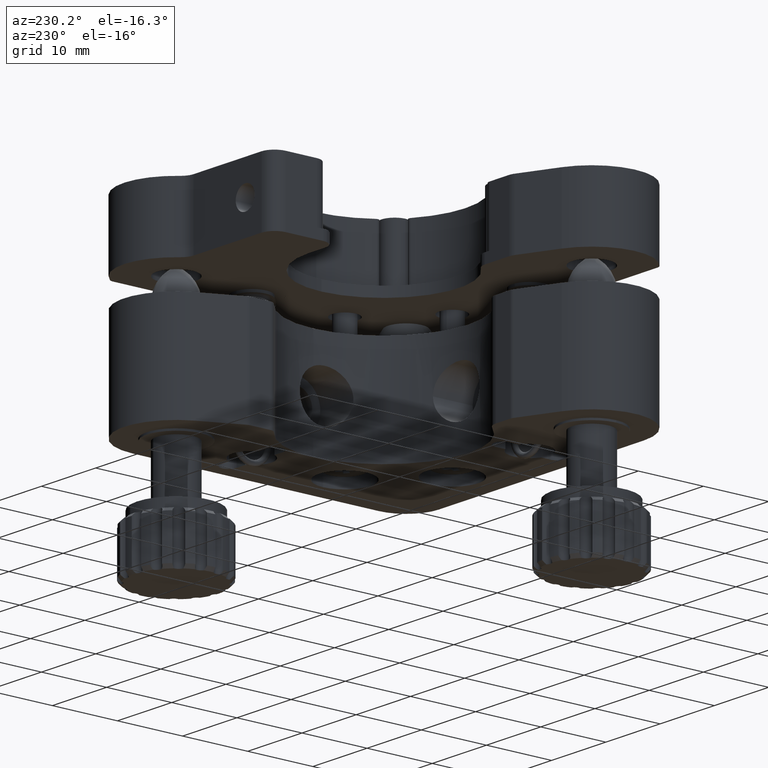
[diagram: clean part render]
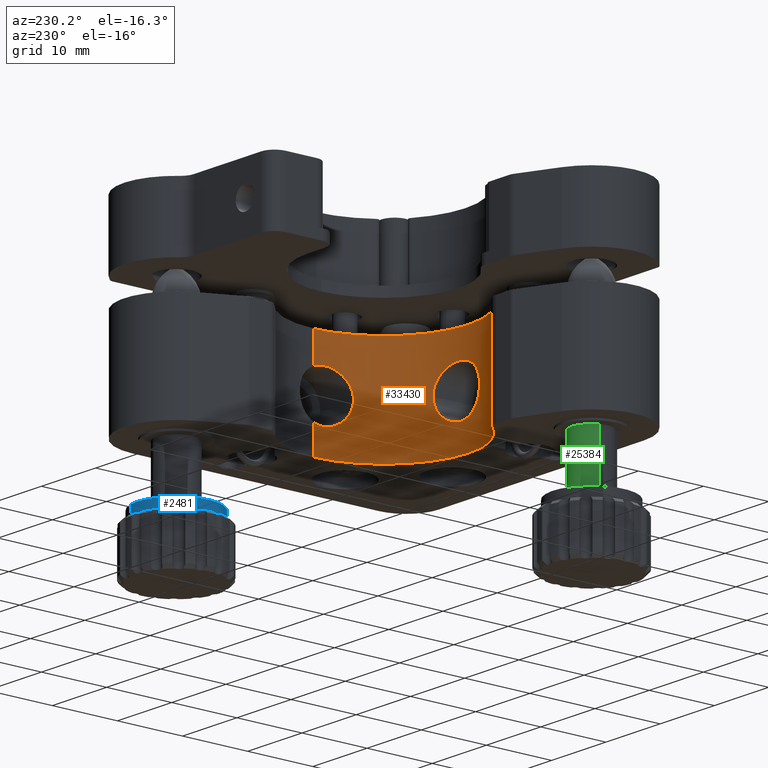
[diagram: same view with three faces highlighted in distinct colors, each labeled with its STEP entity id]
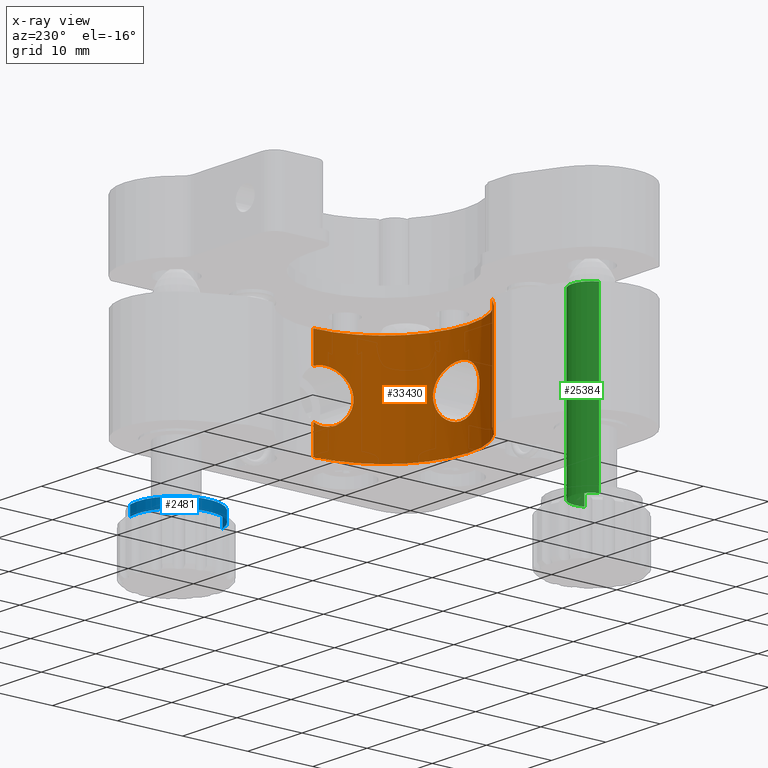
[diagram: x-ray of the same camera — body ghosted, the three highlighted faces saturated]
A machine part, auxiliary view with three faces highlighted in distinct colors.
The next image is the same camera in x-ray (body ghosted, the three faces saturated) — at least one of them is partly hidden behind the body in this view.
Their STEP definitions:

[orange] entity #33430 — the highlighted cylindrical surface (partial cylindrical patch) has radius 13 mm, axis along (0, 0, -1).
#79 = CARTESIAN_POINT ( 'NONE',  ( 29.25068501877161300, 36.55511698702185400, 31.50348170793327500 ) ) ;
#306 = B_SPLINE_CURVE_WITH_KNOTS ( 'NONE', 3,
 ( #14465, #17109, #13741, #13506, #13107, #12323, #11818, #12072, #11737, #11576, #11501, #10963, #10467, #10349, #9334, #4859, #4782, #4739, #4687, #4516, #4481, #79, #4409, #4306, #4268, #4155, #4109, #3990, #3916, #3873, #3664, #3625, #3425, #3306 ),
 .UNSPECIFIED., .F., .F.,
 ( 4, 2, 2, 2, 2, 2, 2, 2, 2, 2, 2, 2, 2, 2, 2, 2, 4 ),
 ( 0.0000000000000000000, 0.0007448707936303037400, 0.001489741587260607500, 0.002234612380890911200, 0.002979483174521215000, 0.003724353968151518700, 0.004469224761781822500, 0.005214095555412126200, 0.005958966349042429900, 0.006703837142672732800, 0.007448707936303037400, 0.008193578729933349800, 0.008938449523563662300, 0.009683320317193976400, 0.01042819111082428900, 0.01117306190445460300, 0.01191793269808491500 ),
 .UNSPECIFIED. ) ;
#1497 = EDGE_CURVE ( 'NONE', #15180, #5653, #1694, .T. ) ;
#1557 = CARTESIAN_POINT ( 'NONE',  ( 15.13875778328551800, 28.58090698974825400, 31.23184706960296000 ) ) ;
#1680 = CARTESIAN_POINT ( 'NONE',  ( 18.98504684360763800, 28.53938262594033000, 33.76043171246860900 ) ) ;
#1694 = LINE ( 'NONE', #12486, #16814 ) ;
#1803 = CARTESIAN_POINT ( 'NONE',  ( 22.32208070088764600, 29.47186954336590100, 30.99339922120351100 ) ) ;
#2270 = CARTESIAN_POINT ( 'NONE',  ( 22.41914494663291500, 29.51400709314875200, 29.51794536846513500 ) ) ;
#2391 = CARTESIAN_POINT ( 'NONE',  ( 19.22783980612315700, 28.57558437823940200, 26.29383889776568900 ) ) ;
#2520 = CARTESIAN_POINT ( 'NONE',  ( 15.32885457699042700, 28.55191263476409300, 28.34048682022018900 ) ) ;
#2742 = VERTEX_POINT ( 'NONE', #35878 ) ;
#3306 = CARTESIAN_POINT ( 'NONE',  ( 30.10710815326551100, 39.91778669584324000, 33.57527957125741800 ) ) ;
#3425 = CARTESIAN_POINT ( 'NONE',  ( 30.07846558588068900, 39.67120910461005700, 33.57527957125743300 ) ) ;
#3618 = EDGE_CURVE ( 'NONE', #6749, #7564, #306, .T. ) ;
#3625 = CARTESIAN_POINT ( 'NONE',  ( 30.04219133656996400, 39.42214796824188700, 33.55054909471144200 ) ) ;
#3664 = CARTESIAN_POINT ( 'NONE',  ( 29.95771943481462100, 38.93865953987926100, 33.45358506874900000 ) ) ;
#3873 = CARTESIAN_POINT ( 'NONE',  ( 29.90998337716128900, 38.70571225342421000, 33.38232041021202400 ) ) ;
#3916 = CARTESIAN_POINT ( 'NONE',  ( 29.80577938156031000, 38.25636058142914200, 33.19593636931610100 ) ) ;
#3990 = CARTESIAN_POINT ( 'NONE',  ( 29.74871696864973800, 38.03821275587535000, 33.07927773626445100 ) ) ;
#4004 = VERTEX_POINT ( 'NONE', #27202 ) ;
#4109 = CARTESIAN_POINT ( 'NONE',  ( 29.63310493153693800, 37.63478242088736200, 32.81010682492031800 ) ) ;
#4129 = CARTESIAN_POINT ( 'NONE',  ( 30.19393658312055400, 41.41778669584324000, 26.38834780004054200 ) ) ;
#4155 = CARTESIAN_POINT ( 'NONE',  ( 29.57422495269233000, 37.44769337270893300, 32.65730449209906500 ) ) ;
#4268 = CARTESIAN_POINT ( 'NONE',  ( 29.45812790892108500, 37.10237336311264800, 32.31429020665929400 ) ) ;
#4306 = CARTESIAN_POINT ( 'NONE',  ( 29.40125423252694100, 36.94535872114731500, 32.12451241986577300 ) ) ;
#4409 = CARTESIAN_POINT ( 'NONE',  ( 29.29798006774942100, 36.67296346367062700, 31.72078001937858700 ) ) ;
#4416 = CARTESIAN_POINT ( 'NONE',  ( 15.44818013563171600, 28.53478629683056400, 31.90798270974103100 ) ) ;
#4481 = CARTESIAN_POINT ( 'NONE',  ( 29.17163046922349400, 36.36352228759592700, 31.04639156384233100 ) ) ;
#4516 = CARTESIAN_POINT ( 'NONE',  ( 29.14042272346566900, 36.29096118293206500, 30.81038823386352000 ) ) ;
#4525 = CARTESIAN_POINT ( 'NONE',  ( 19.70587471704553600, 28.66046852245348800, 33.63281014989804200 ) ) ;
#4664 = CARTESIAN_POINT ( 'NONE',  ( 22.44393658312055400, 29.52503680357694500, 30.26386570700773100 ) ) ;
#4687 = CARTESIAN_POINT ( 'NONE',  ( 29.09775582246828700, 36.19265909374299600, 30.32300110617018500 ) ) ;
#4739 = CARTESIAN_POINT ( 'NONE',  ( 29.08658424467233800, 36.16755511398078900, 30.07021868096471800 ) ) ;
#4782 = CARTESIAN_POINT ( 'NONE',  ( 29.08679016485340400, 36.16802158219643800, 29.57330005316102400 ) ) ;
#4859 = CARTESIAN_POINT ( 'NONE',  ( 29.09777671160236800, 36.19269951207716900, 29.32620690511766200 ) ) ;
#5059 = VECTOR ( 'NONE', #10729, 1000.000000000000000 ) ;
#5112 = DIRECTION ( 'NONE',  ( 0.0000000000000000000, 0.0000000000000000000, -1.000000000000000000 ) ) ;
#5131 = CARTESIAN_POINT ( 'NONE',  ( 22.24946857561525700, 29.44064339343767900, 28.79689250419540900 ) ) ;
#5248 = CARTESIAN_POINT ( 'NONE',  ( 18.49546670359383400, 28.48074732579983200, 26.26090234811147500 ) ) ;
#5382 = CARTESIAN_POINT ( 'NONE',  ( 15.06646065864656400, 28.59295476579672600, 29.03097702548161500 ) ) ;
#5440 = VERTEX_POINT ( 'NONE', #19996 ) ;
#5653 = VERTEX_POINT ( 'NONE', #18531 ) ;
#6021 = AXIS2_PLACEMENT_3D ( 'NONE', #20274, #25952, #23234 ) ;
#6124 = CARTESIAN_POINT ( 'NONE',  ( 30.19393658312055400, 41.41778669584324000, 37.86366457255799400 ) ) ;
#6327 = AXIS2_PLACEMENT_3D ( 'NONE', #29409, #12499, #32239 ) ;
#6749 = VERTEX_POINT ( 'NONE', #31715 ) ;
#6999 = CARTESIAN_POINT ( 'NONE',  ( 30.15885780398059900, 40.43065889974523200, 26.10162375079663700 ) ) ;
#7229 = ORIENTED_EDGE ( 'NONE', *, *, #34038, .F. ) ;
#7274 = CARTESIAN_POINT ( 'NONE',  ( 15.88132651756001800, 28.48301471998607000, 32.50627117479323400 ) ) ;
#7391 = CARTESIAN_POINT ( 'NONE',  ( 20.38473489987771400, 28.81339083490119500, 33.36954129109750500 ) ) ;
#7564 = VERTEX_POINT ( 'NONE', #11999 ) ;
#7618 = VECTOR ( 'NONE', #25800, 1000.000000000000000 ) ;
#7971 = CARTESIAN_POINT ( 'NONE',  ( 21.94654638470079200, 29.31681205396146300, 28.13161239742929400 ) ) ;
#8084 = CARTESIAN_POINT ( 'NONE',  ( 17.76050873577182500, 28.42787038701206400, 26.37333791915745000 ) ) ;
#8208 = CARTESIAN_POINT ( 'NONE',  ( 14.94393658312055700, 28.61397866854137500, 29.76719157323858800 ) ) ;
#8786 = CARTESIAN_POINT ( 'NONE',  ( 30.19393658312055400, 41.41778669584324000, 37.86366457255799400 ) ) ;
#8917 = CARTESIAN_POINT ( 'NONE',  ( 30.15875968505257600, 40.42875442063159100, 33.54936802928524000 ) ) ;
#9334 = CARTESIAN_POINT ( 'NONE',  ( 29.14099122929373900, 36.29227880259383500, 28.83480465045818200 ) ) ;
#9380 = CARTESIAN_POINT ( 'NONE',  ( 17.19393658312055400, 41.41778669584324000, 37.86366457255799400 ) ) ;
#9838 = CARTESIAN_POINT ( 'NONE',  ( 30.10710815326551100, 39.91778669584324000, 26.07527957125741800 ) ) ;
#9990 = CARTESIAN_POINT ( 'NONE',  ( 14.94393658312055500, 28.61397866854136400, 30.26009968302317100 ) ) ;
#10017 = ORIENTED_EDGE ( 'NONE', *, *, #31310, .F. ) ;
#10119 = CARTESIAN_POINT ( 'NONE',  ( 16.42845665998803600, 28.43870838955374200, 33.01212286648650700 ) ) ;
#10240 = CARTESIAN_POINT ( 'NONE',  ( 20.99883699055403200, 28.98530947236744000, 32.98164098286196800 ) ) ;
#10349 = CARTESIAN_POINT ( 'NONE',  ( 29.17259297343704100, 36.36582491339707700, 28.59808784836550500 ) ) ;
#10467 = CARTESIAN_POINT ( 'NONE',  ( 29.25083913892867900, 36.55552101734374300, 28.14670829309350400 ) ) ;
#10580 = CYLINDRICAL_SURFACE ( 'NONE', #6021, 13.00000000000000200 ) ;
#10729 = DIRECTION ( 'NONE',  ( 0.0000000000000000000, 0.0000000000000000000, -1.000000000000000000 ) ) ;
#10830 = CARTESIAN_POINT ( 'NONE',  ( 21.52148744352561500, 29.15792344329552300, 27.53877220513124200 ) ) ;
#10946 = CARTESIAN_POINT ( 'NONE',  ( 17.06220567850337100, 28.41640488595623300, 26.62812551692126900 ) ) ;
#10963 = CARTESIAN_POINT ( 'NONE',  ( 29.29806022198964800, 36.67313362608100400, 27.92927387479918600 ) ) ;
#11501 = CARTESIAN_POINT ( 'NONE',  ( 29.40209644586734000, 36.94762175671044700, 27.52294784484051200 ) ) ;
#11576 = CARTESIAN_POINT ( 'NONE',  ( 29.45805099024486400, 37.10220436787759000, 27.33660309888197300 ) ) ;
#11737 = CARTESIAN_POINT ( 'NONE',  ( 29.57343267239196600, 37.44527746411107200, 26.99548937961657600 ) ) ;
#11778 = CARTESIAN_POINT ( 'NONE',  ( 30.19393658312056100, 41.18201317599793000, 33.36511134262261900 ) ) ;
#11818 = CARTESIAN_POINT ( 'NONE',  ( 29.74914082197961600, 38.03977614996078000, 26.57036757808546700 ) ) ;
#11999 = CARTESIAN_POINT ( 'NONE',  ( 30.10710815326551100, 39.91778669584324000, 33.57527957125741800 ) ) ;
#12072 = CARTESIAN_POINT ( 'NONE',  ( 29.63347071157763300, 37.63597504076185600, 26.83952819773765000 ) ) ;
#12117 = EDGE_LOOP ( 'NONE', ( #24321, #35084, #28975, #33530, #7229, #23215, #29997, #30255 ) ) ;
#12243 = DIRECTION ( 'NONE',  ( 1.000000000000000000, 0.0000000000000000000, 0.0000000000000000000 ) ) ;
#12323 = CARTESIAN_POINT ( 'NONE',  ( 29.80502835347108700, 38.25328961507339900, 26.45605469330979200 ) ) ;
#12486 = CARTESIAN_POINT ( 'NONE',  ( 30.19393658312055400, 41.41778669584324000, 37.86366457255799400 ) ) ;
#12499 = DIRECTION ( 'NONE',  ( 0.0000000000000000000, 0.0000000000000000000, -1.000000000000000000 ) ) ;
#12989 = CARTESIAN_POINT ( 'NONE',  ( 17.05921191793864000, 28.41642045891186200, 33.39783113458134500 ) ) ;
#13107 = CARTESIAN_POINT ( 'NONE',  ( 29.90977836331593300, 38.70466206998445100, 26.26851763767127700 ) ) ;
#13116 = CARTESIAN_POINT ( 'NONE',  ( 21.52184616925901000, 29.15805230763438900, 32.48813122338521000 ) ) ;
#13311 = EDGE_CURVE ( 'NONE', #18023, #2742, #30524, .T. ) ;
#13415 = EDGE_CURVE ( 'NONE', #20991, #26545, #35107, .T. ) ;
#13506 = CARTESIAN_POINT ( 'NONE',  ( 29.95838189457839800, 38.94223940571777100, 26.19612603015919600 ) ) ;
#13692 = CARTESIAN_POINT ( 'NONE',  ( 20.99686830004002000, 28.98471076582353900, 27.04418766207566400 ) ) ;
#13741 = CARTESIAN_POINT ( 'NONE',  ( 30.04220064632967500, 39.42241478642515800, 26.10008768203930200 ) ) ;
#13812 = CARTESIAN_POINT ( 'NONE',  ( 16.42882880251303100, 28.43868262797204200, 27.01490408245804900 ) ) ;
#14465 = CARTESIAN_POINT ( 'NONE',  ( 30.10710815326551100, 39.91778669584324000, 26.07527957125741800 ) ) ;
#15180 = VERTEX_POINT ( 'NONE', #6124 ) ;
#15831 = CARTESIAN_POINT ( 'NONE',  ( 17.75948690046600100, 28.42783294852470600, 33.65370426928550500 ) ) ;
#15960 = CARTESIAN_POINT ( 'NONE',  ( 21.94658354581295300, 29.31683054612713200, 31.89558901496886300 ) ) ;
#16545 = CARTESIAN_POINT ( 'NONE',  ( 20.38412173851343600, 28.81324165275381000, 26.65750484766255100 ) ) ;
#16670 = CARTESIAN_POINT ( 'NONE',  ( 15.88145935310576100, 28.48299674510615300, 27.52086645590743400 ) ) ;
#16814 = VECTOR ( 'NONE', #5112, 1000.000000000000000 ) ;
#17109 = CARTESIAN_POINT ( 'NONE',  ( 30.07802789748630800, 39.66744114105619400, 26.07527957125741800 ) ) ;
#17290 = ORIENTED_EDGE ( 'NONE', *, *, #13311, .F. ) ;
#17347 = EDGE_CURVE ( 'NONE', #5440, #4004, #30192, .T. ) ;
#18023 = VERTEX_POINT ( 'NONE', #26113 ) ;
#18531 = CARTESIAN_POINT ( 'NONE',  ( 30.19393658312055400, 41.41778669584324000, 33.26221134247430200 ) ) ;
#18576 = CARTESIAN_POINT ( 'NONE',  ( 15.06639013194742700, 28.59296624932138900, 30.99621552211098300 ) ) ;
#18712 = CARTESIAN_POINT ( 'NONE',  ( 18.49311019687638300, 28.48049504441037900, 33.76635400109630300 ) ) ;
#18829 = CARTESIAN_POINT ( 'NONE',  ( 22.24862254065952900, 29.44028881886717400, 31.23271856570896100 ) ) ;
#19408 = CARTESIAN_POINT ( 'NONE',  ( 19.70584190909854500, 28.66046509920182600, 26.39452056967084200 ) ) ;
#19534 = CARTESIAN_POINT ( 'NONE',  ( 15.44828942922063900, 28.53477184484398800, 28.11916854024816100 ) ) ;
#19996 = CARTESIAN_POINT ( 'NONE',  ( 30.19393658312055400, 41.41778669584324000, 26.38834780004054200 ) ) ;
#20274 = CARTESIAN_POINT ( 'NONE',  ( 17.19393658312055400, 41.41778669584324000, 37.86366457255799400 ) ) ;
#20976 = CIRCLE ( 'NONE', #31676, 13.00000000000000200 ) ;
#20991 = VERTEX_POINT ( 'NONE', #28873 ) ;
#21150 = CARTESIAN_POINT ( 'NONE',  ( 30.19393658312055000, 41.18316380038627500, 26.28594997354517900 ) ) ;
#21431 = CARTESIAN_POINT ( 'NONE',  ( 15.32881469002518800, 28.55191864071609900, 31.68675140219759400 ) ) ;
#21553 = CARTESIAN_POINT ( 'NONE',  ( 19.22755762129720800, 28.57553667340355100, 33.73354119477100700 ) ) ;
#21671 = CARTESIAN_POINT ( 'NONE',  ( 22.41913578203914200, 29.51400191796430400, 30.50985067617320100 ) ) ;
#21708 = FACE_OUTER_BOUND ( 'NONE', #12117, .T. ) ;
#22133 = CARTESIAN_POINT ( 'NONE',  ( 22.32256760856780200, 29.47207972319131700, 29.03593671571309200 ) ) ;
#22261 = CARTESIAN_POINT ( 'NONE',  ( 18.98579429138442300, 28.53950209462839300, 26.26700823864651100 ) ) ;
#22377 = CARTESIAN_POINT ( 'NONE',  ( 15.13873845076746600, 28.58090986065033700, 28.79552380129543500 ) ) ;
#23083 = CARTESIAN_POINT ( 'NONE',  ( 30.13671067146291800, 40.17262829343749100, 33.57527957125741100 ) ) ;
#23215 = ORIENTED_EDGE ( 'NONE', *, *, #17347, .T. ) ;
#23234 = DIRECTION ( 'NONE',  ( 1.000000000000000000, 0.0000000000000000000, 0.0000000000000000000 ) ) ;
#24006 = CARTESIAN_POINT ( 'NONE',  ( 30.18738847875212600, 40.93424622716997200, 26.20651450732168200 ) ) ;
#24106 = B_SPLINE_CURVE_WITH_KNOTS ( 'NONE', 3,
 ( #27672, #33166, #2270, #22133, #5131, #24990, #7971, #27796, #10830, #30589, #13692, #33398, #16545, #36252, #19408, #2391, #22261, #5248, #25115, #8084, #27924, #10946, #30714, #13812, #33521, #16670, #36376, #19534, #2520, #22377, #5382, #25233, #8208, #28038 ),
 .UNSPECIFIED., .F., .F.,
 ( 4, 2, 2, 2, 2, 2, 2, 2, 2, 2, 2, 2, 2, 2, 2, 2, 4 ),
 ( 0.0000000000000000000, 0.0007394264796464903400, 0.001478852959292980700, 0.002218279438939470800, 0.002957705918585961300, 0.003697132398232451500, 0.004436558877878941600, 0.005175985357525432100, 0.005915411837171922700, 0.006654838316818412400, 0.007394264796464902900, 0.008133691276111392600, 0.008873117755757883200, 0.009612544235404373700, 0.01035197071505086100, 0.01109139719469735000, 0.01183082367434383700 ),
 .UNSPECIFIED. ) ;
#24289 = CARTESIAN_POINT ( 'NONE',  ( 15.72435905922456600, 28.50036796158485700, 32.31691997542754500 ) ) ;
#24321 = ORIENTED_EDGE ( 'NONE', *, *, #29712, .F. ) ;
#24421 = CARTESIAN_POINT ( 'NONE',  ( 19.94076399206190300, 28.70924908905929100, 33.55853818247653900 ) ) ;
#24538 = CARTESIAN_POINT ( 'NONE',  ( 22.44393658312055400, 29.52503680357694200, 30.01366457255799200 ) ) ;
#24990 = CARTESIAN_POINT ( 'NONE',  ( 22.06125980891111000, 29.36293165610196400, 28.34528922238879300 ) ) ;
#25115 = CARTESIAN_POINT ( 'NONE',  ( 18.24507691648412300, 28.45807860830614500, 26.28247298147994500 ) ) ;
#25233 = CARTESIAN_POINT ( 'NONE',  ( 14.96850819357395900, 28.60958868339211500, 29.51824584846934100 ) ) ;
#25800 = DIRECTION ( 'NONE',  ( 0.0000000000000000000, 0.0000000000000000000, -1.000000000000000000 ) ) ;
#25952 = DIRECTION ( 'NONE',  ( 0.0000000000000000000, 0.0000000000000000000, -1.000000000000000000 ) ) ;
#26113 = CARTESIAN_POINT ( 'NONE',  ( 14.94393658312055400, 28.61397866854136400, 30.01366457255799200 ) ) ;
#26545 = VERTEX_POINT ( 'NONE', #34971 ) ;
#26688 = B_SPLINE_CURVE_WITH_KNOTS ( 'NONE', 3,
 ( #4129, #21150, #24006, #6999, #26827, #9838 ),
 .UNSPECIFIED., .F., .F.,
 ( 4, 2, 4 ),
 ( 0.02211409442039083400, 0.02288135294350887900, 0.02364861146662692500 ),
 .UNSPECIFIED. ) ;
#26827 = CARTESIAN_POINT ( 'NONE',  ( 30.13706244103172300, 40.17565660063429800, 26.07527957125741800 ) ) ;
#27093 = CARTESIAN_POINT ( 'NONE',  ( 16.23364610429537400, 28.45209683961466500, 32.85458586928575600 ) ) ;
#27202 = CARTESIAN_POINT ( 'NONE',  ( 30.19393658312055400, 41.41778669584324000, 22.06366457255799000 ) ) ;
#27210 = CARTESIAN_POINT ( 'NONE',  ( 20.59687108309571400, 28.86932886981495400, 33.25407969243263300 ) ) ;
#27339 = B_SPLINE_CURVE_WITH_KNOTS ( 'NONE', 3,
 ( #34114, #23083, #8917, #28719, #11778, #31537 ),
 .UNSPECIFIED., .F., .F.,
 ( 4, 2, 4 ),
 ( 0.01191793269808491500, 0.01268776771066941800, 0.01345760272325392300 ),
 .UNSPECIFIED. ) ;
#27672 = CARTESIAN_POINT ( 'NONE',  ( 22.44393658312055400, 29.52503680357694200, 30.01366457255799200 ) ) ;
#27694 = CARTESIAN_POINT ( 'NONE',  ( 7.133508052375836100, 33.18445336250991300, 37.86366457255799400 ) ) ;
#27796 = CARTESIAN_POINT ( 'NONE',  ( 21.67634619817953000, 29.21414415550434300, 27.72743978062561600 ) ) ;
#27924 = CARTESIAN_POINT ( 'NONE',  ( 17.52385013887409600, 28.41992383137886300, 26.44220574522775600 ) ) ;
#28038 = CARTESIAN_POINT ( 'NONE',  ( 14.94393658312055400, 28.61397866854136400, 30.01366457255799200 ) ) ;
#28719 = CARTESIAN_POINT ( 'NONE',  ( 30.18754303048892500, 40.93714712536684200, 33.44340438581438200 ) ) ;
#28873 = CARTESIAN_POINT ( 'NONE',  ( 7.133508052375836100, 33.18445336250991300, 37.86366457255799400 ) ) ;
#28975 = ORIENTED_EDGE ( 'NONE', *, *, #36537, .F. ) ;
#29165 = DIRECTION ( 'NONE',  ( 0.0000000000000000000, 0.0000000000000000000, -1.000000000000000000 ) ) ;
#29166 = FACE_BOUND ( 'NONE', #29464, .T. ) ;
#29409 = CARTESIAN_POINT ( 'NONE',  ( 17.19393658312055400, 41.41778669584324000, 22.06366457255799000 ) ) ;
#29464 = EDGE_LOOP ( 'NONE', ( #10017, #17290 ) ) ;
#29712 = EDGE_CURVE ( 'NONE', #15180, #20991, #20976, .T. ) ;
#29757 = EDGE_CURVE ( 'NONE', #4004, #26545, #31514, .T. ) ;
#29783 = CARTESIAN_POINT ( 'NONE',  ( 14.94393658312055400, 28.61397866854136400, 30.01366457255799200 ) ) ;
#29900 = CARTESIAN_POINT ( 'NONE',  ( 16.84006105344263900, 28.42097149737984900, 33.28265477489979000 ) ) ;
#29997 = ORIENTED_EDGE ( 'NONE', *, *, #29757, .T. ) ;
#30029 = CARTESIAN_POINT ( 'NONE',  ( 21.18346610607024500, 29.04380015791892700, 32.82832273791159100 ) ) ;
#30192 = LINE ( 'NONE', #8786, #7618 ) ;
#30255 = ORIENTED_EDGE ( 'NONE', *, *, #13415, .F. ) ;
#30524 = B_SPLINE_CURVE_WITH_KNOTS ( 'NONE', 3,
 ( #29783, #9990, #35432, #18576, #1557, #21431, #4416, #24289, #7274, #27093, #10119, #29900, #12989, #32713, #15831, #35545, #18712, #1680, #21553, #4525, #24421, #7391, #27210, #10240, #30029, #13116, #32834, #15960, #35669, #18829, #1803, #21671, #4664, #24538 ),
 .UNSPECIFIED., .F., .F.,
 ( 4, 2, 2, 2, 2, 2, 2, 2, 2, 2, 2, 2, 2, 2, 2, 2, 4 ),
 ( 0.01183082367434383700, 0.01257013648627747900, 0.01330944929821112200, 0.01404876211014476400, 0.01478807492207840800, 0.01552738773401205400, 0.01626670054594570000, 0.01700601335787934500, 0.01774532616981298900, 0.01848463898174663300, 0.01922395179368028100, 0.01996326460561392500, 0.02070257741754756900, 0.02144189022948121700, 0.02218120304141486100, 0.02292051585334850500, 0.02365982866528215000 ),
 .UNSPECIFIED. ) ;
#30589 = CARTESIAN_POINT ( 'NONE',  ( 21.18281223910654300, 29.04358714913944400, 27.19841430525227800 ) ) ;
#30714 = CARTESIAN_POINT ( 'NONE',  ( 16.84091452198585500, 28.42094447379064100, 26.74417119044184000 ) ) ;
#31310 = EDGE_CURVE ( 'NONE', #2742, #18023, #24106, .T. ) ;
#31514 = CIRCLE ( 'NONE', #6327, 13.00000000000000200 ) ;
#31537 = CARTESIAN_POINT ( 'NONE',  ( 30.19393658312055400, 41.41778669584324000, 33.26221134247430200 ) ) ;
#31676 = AXIS2_PLACEMENT_3D ( 'NONE', #9380, #29165, #12243 ) ;
#31715 = CARTESIAN_POINT ( 'NONE',  ( 30.10710815326551100, 39.91778669584324000, 26.07527957125741800 ) ) ;
#32239 = DIRECTION ( 'NONE',  ( 1.000000000000000000, 0.0000000000000000000, 0.0000000000000000000 ) ) ;
#32713 = CARTESIAN_POINT ( 'NONE',  ( 17.52255532048824800, 28.41987592188889200, 33.58476720172242800 ) ) ;
#32834 = CARTESIAN_POINT ( 'NONE',  ( 21.67699701969854300, 29.21438708707313500, 32.29898781065336500 ) ) ;
#33166 = CARTESIAN_POINT ( 'NONE',  ( 22.44393658312055000, 29.52503680357694500, 29.76342497023614100 ) ) ;
#33398 = CARTESIAN_POINT ( 'NONE',  ( 20.59530094913074500, 28.86890677870230700, 26.77235293028292400 ) ) ;
#33430 = ADVANCED_FACE ( 'NONE', ( #29166, #21708 ), #10580, .F. ) ;
#33521 = CARTESIAN_POINT ( 'NONE',  ( 16.23443456936356500, 28.45203398207483000, 27.17202411957075000 ) ) ;
#33530 = ORIENTED_EDGE ( 'NONE', *, *, #3618, .F. ) ;
#34038 = EDGE_CURVE ( 'NONE', #5440, #6749, #26688, .T. ) ;
#34114 = CARTESIAN_POINT ( 'NONE',  ( 30.10710815326551100, 39.91778669584324000, 33.57527957125741800 ) ) ;
#34971 = CARTESIAN_POINT ( 'NONE',  ( 7.133508052375836100, 33.18445336250991300, 22.06366457255799000 ) ) ;
#35084 = ORIENTED_EDGE ( 'NONE', *, *, #1497, .T. ) ;
#35107 = LINE ( 'NONE', #27694, #5059 ) ;
#35432 = CARTESIAN_POINT ( 'NONE',  ( 14.96832786136267600, 28.60961980104289300, 30.50797143701350900 ) ) ;
#35545 = CARTESIAN_POINT ( 'NONE',  ( 18.24330043457283100, 28.45794174977271500, 33.74461783744720100 ) ) ;
#35669 = CARTESIAN_POINT ( 'NONE',  ( 22.06095458344629600, 29.36281090545639600, 31.68251887429450500 ) ) ;
#35878 = CARTESIAN_POINT ( 'NONE',  ( 22.44393658312055400, 29.52503680357694200, 30.01366457255799200 ) ) ;
#36252 = CARTESIAN_POINT ( 'NONE',  ( 19.94079729519880900, 28.70926226153536100, 26.46882715411460700 ) ) ;
#36376 = CARTESIAN_POINT ( 'NONE',  ( 15.72440281672684700, 28.50036334029686800, 27.71036045145197600 ) ) ;
#36537 = EDGE_CURVE ( 'NONE', #7564, #5653, #27339, .T. ) ;

[blue] entity #2481 — the highlighted cylindrical surface (partial cylindrical patch) has radius 6 mm, axis along (-0, -0, -1).
#1566 = CYLINDRICAL_SURFACE ( 'NONE', #10955, 5.999999999999988500 ) ;
#2481 = ADVANCED_FACE ( 'NONE', ( #19360 ), #1566, .T. ) ;
#2830 = CARTESIAN_POINT ( 'NONE',  ( 36.22786438801541200, 64.51839575777546500, 4.263664572557997800 ) ) ;
#3422 = DIRECTION ( 'NONE',  ( -6.938893903907199900E-018, -5.551115123125793800E-017, -1.000000000000000000 ) ) ;
#5303 = VECTOR ( 'NONE', #34083, 1000.000000000000000 ) ;
#5817 = CARTESIAN_POINT ( 'NONE',  ( 36.22786438801541200, 64.51839575777546500, 11.76366457255799800 ) ) ;
#6085 = EDGE_LOOP ( 'NONE', ( #29991, #24223, #16339, #15798 ) ) ;
#7431 = LINE ( 'NONE', #25411, #22536 ) ;
#7588 = CARTESIAN_POINT ( 'NONE',  ( 36.22786438801541200, 64.51839575777546500, 13.26366457255800000 ) ) ;
#8395 = DIRECTION ( 'NONE',  ( -6.938893903907199900E-018, -5.551115123125793800E-017, -1.000000000000000000 ) ) ;
#10955 = AXIS2_PLACEMENT_3D ( 'NONE', #36652, #30989, #19674 ) ;
#11855 = CARTESIAN_POINT ( 'NONE',  ( 33.16000877822568100, 52.91717763391099500, 13.26366457255800000 ) ) ;
#12634 = VERTEX_POINT ( 'NONE', #30182 ) ;
#12907 = VERTEX_POINT ( 'NONE', #5817 ) ;
#14484 = DIRECTION ( 'NONE',  ( -6.938893903907199900E-018, -5.551115123125793800E-017, -1.000000000000000000 ) ) ;
#14500 = CIRCLE ( 'NONE', #16093, 5.999999999999988500 ) ;
#15798 = ORIENTED_EDGE ( 'NONE', *, *, #27941, .F. ) ;
#16093 = AXIS2_PLACEMENT_3D ( 'NONE', #31410, #14484, #34221 ) ;
#16339 = ORIENTED_EDGE ( 'NONE', *, *, #27119, .T. ) ;
#19360 = FACE_OUTER_BOUND ( 'NONE', #6085, .T. ) ;
#19393 = EDGE_CURVE ( 'NONE', #20451, #28726, #14500, .T. ) ;
#19674 = DIRECTION ( 'NONE',  ( 0.2556546341491444100, 0.9667681769887066500, 0.0000000000000000000 ) ) ;
#20412 = LINE ( 'NONE', #2830, #5303 ) ;
#20449 = CARTESIAN_POINT ( 'NONE',  ( 34.69393658312054600, 58.71778669584323000, 11.76366457255799800 ) ) ;
#20451 = VERTEX_POINT ( 'NONE', #11855 ) ;
#22536 = VECTOR ( 'NONE', #8395, 1000.000000000000000 ) ;
#23288 = DIRECTION ( 'NONE',  ( 0.2556546341491444100, 0.9667681769887066500, 0.0000000000000000000 ) ) ;
#24223 = ORIENTED_EDGE ( 'NONE', *, *, #19393, .T. ) ;
#25411 = CARTESIAN_POINT ( 'NONE',  ( 33.16000877822568100, 52.91717763391099500, 4.263664572557997800 ) ) ;
#27119 = EDGE_CURVE ( 'NONE', #28726, #12907, #20412, .T. ) ;
#27772 = EDGE_CURVE ( 'NONE', #20451, #12634, #7431, .T. ) ;
#27941 = EDGE_CURVE ( 'NONE', #12634, #12907, #28661, .T. ) ;
#28661 = CIRCLE ( 'NONE', #30959, 5.999999999999988500 ) ;
#28726 = VERTEX_POINT ( 'NONE', #7588 ) ;
#29991 = ORIENTED_EDGE ( 'NONE', *, *, #27772, .F. ) ;
#30182 = CARTESIAN_POINT ( 'NONE',  ( 33.16000877822568100, 52.91717763391099500, 11.76366457255799800 ) ) ;
#30959 = AXIS2_PLACEMENT_3D ( 'NONE', #20449, #3422, #23288 ) ;
#30989 = DIRECTION ( 'NONE',  ( -6.938893903907199900E-018, -5.551115123125793800E-017, -1.000000000000000000 ) ) ;
#31410 = CARTESIAN_POINT ( 'NONE',  ( 34.69393658312054600, 58.71778669584323000, 13.26366457255800000 ) ) ;
#34083 = DIRECTION ( 'NONE',  ( -6.938893903907199900E-018, -5.551115123125793800E-017, -1.000000000000000000 ) ) ;
#34221 = DIRECTION ( 'NONE',  ( 0.2556546341491444100, 0.9667681769887066500, 0.0000000000000000000 ) ) ;
#36652 = CARTESIAN_POINT ( 'NONE',  ( 34.69393658312054600, 58.71778669584323000, 4.263664572557997800 ) ) ;

[green] entity #25384 — the highlighted cylindrical surface (edge-blend (fillet) strip) has radius 3 mm, axis along (-0, -0, -1).
#1921 = VERTEX_POINT ( 'NONE', #24925 ) ;
#2407 = DIRECTION ( 'NONE',  ( -6.938893903907226800E-018, -5.551115123125781500E-017, -1.000000000000000000 ) ) ;
#3582 = DIRECTION ( 'NONE',  ( -6.938893903907226800E-018, -5.551115123125781500E-017, -1.000000000000000000 ) ) ;
#3968 = VECTOR ( 'NONE', #36140, 1000.000000000000000 ) ;
#5919 = CARTESIAN_POINT ( 'NONE',  ( -0.1060634168794444300, 23.91778669584323700, 13.26366457255799800 ) ) ;
#6444 = CARTESIAN_POINT ( 'NONE',  ( -2.869558081119144800, 25.08530425062289700, 4.263664572557994200 ) ) ;
#6961 = ORIENTED_EDGE ( 'NONE', *, *, #32635, .F. ) ;
#7221 = VECTOR ( 'NONE', #3582, 1000.000000000000000 ) ;
#7338 = CARTESIAN_POINT ( 'NONE',  ( -2.869558081119143900, 25.08530425062290100, 39.26366457255800700 ) ) ;
#7960 = EDGE_CURVE ( 'NONE', #21290, #22374, #31239, .T. ) ;
#8510 = CARTESIAN_POINT ( 'NONE',  ( -2.869558081119144800, 25.08530425062289700, 13.26366457255799800 ) ) ;
#8744 = DIRECTION ( 'NONE',  ( -0.9211648880799016000, 0.3891725182598871900, 0.0000000000000000000 ) ) ;
#9307 = FACE_OUTER_BOUND ( 'NONE', #11062, .T. ) ;
#10260 = ORIENTED_EDGE ( 'NONE', *, *, #18475, .T. ) ;
#11062 = EDGE_LOOP ( 'NONE', ( #33974, #10260, #6961, #32194 ) ) ;
#14753 = LINE ( 'NONE', #6444, #7221 ) ;
#15451 = DIRECTION ( 'NONE',  ( -6.938893903907226800E-018, -5.551115123125781500E-017, -1.000000000000000000 ) ) ;
#16427 = CARTESIAN_POINT ( 'NONE',  ( 2.657431247360255700, 22.75026914106357600, 4.263664572557994200 ) ) ;
#18475 = EDGE_CURVE ( 'NONE', #22374, #1921, #33525, .T. ) ;
#19241 = CARTESIAN_POINT ( 'NONE',  ( 2.657431247360254400, 22.75026914106358000, 39.26366457255800700 ) ) ;
#19424 = CARTESIAN_POINT ( 'NONE',  ( -0.1060634168794442500, 23.91778669584324000, 39.26366457255800700 ) ) ;
#21290 = VERTEX_POINT ( 'NONE', #7338 ) ;
#22276 = DIRECTION ( 'NONE',  ( -0.9211648880799016000, 0.3891725182598871900, 0.0000000000000000000 ) ) ;
#22374 = VERTEX_POINT ( 'NONE', #19241 ) ;
#23285 = CARTESIAN_POINT ( 'NONE',  ( -0.1060634168794444800, 23.91778669584323700, 4.263664572557994200 ) ) ;
#24925 = CARTESIAN_POINT ( 'NONE',  ( 2.657431247360257000, 22.75026914106358000, 13.26366457255799800 ) ) ;
#25384 = ADVANCED_FACE ( 'NONE', ( #9307 ), #27478, .T. ) ;
#25762 = DIRECTION ( 'NONE',  ( -6.938893903907226800E-018, -5.551115123125781500E-017, -1.000000000000000000 ) ) ;
#26854 = DIRECTION ( 'NONE',  ( -0.9211648880799016000, 0.3891725182598871900, 0.0000000000000000000 ) ) ;
#27478 = CYLINDRICAL_SURFACE ( 'NONE', #30621, 2.999999999999995100 ) ;
#28509 = AXIS2_PLACEMENT_3D ( 'NONE', #5919, #25762, #8744 ) ;
#28792 = AXIS2_PLACEMENT_3D ( 'NONE', #19424, #2407, #22276 ) ;
#29463 = VERTEX_POINT ( 'NONE', #8510 ) ;
#30621 = AXIS2_PLACEMENT_3D ( 'NONE', #23285, #15451, #26854 ) ;
#31239 = CIRCLE ( 'NONE', #28792, 2.999999999999995100 ) ;
#31846 = CIRCLE ( 'NONE', #28509, 2.999999999999995100 ) ;
#32194 = ORIENTED_EDGE ( 'NONE', *, *, #36655, .F. ) ;
#32635 = EDGE_CURVE ( 'NONE', #29463, #1921, #31846, .T. ) ;
#33525 = LINE ( 'NONE', #16427, #3968 ) ;
#33974 = ORIENTED_EDGE ( 'NONE', *, *, #7960, .T. ) ;
#36140 = DIRECTION ( 'NONE',  ( -6.938893903907226800E-018, -5.551115123125781500E-017, -1.000000000000000000 ) ) ;
#36655 = EDGE_CURVE ( 'NONE', #21290, #29463, #14753, .T. ) ;